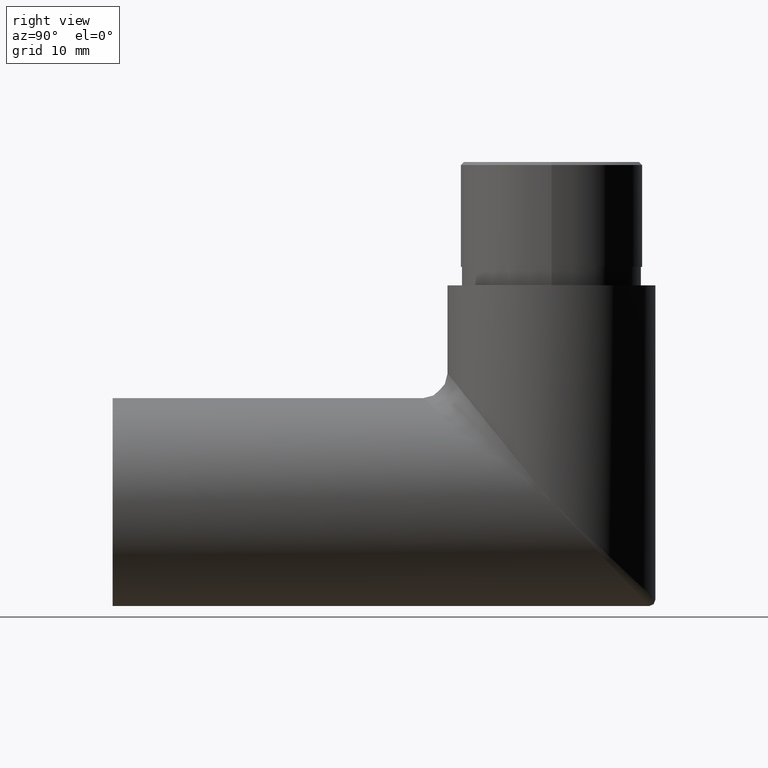
[diagram: clean part render]
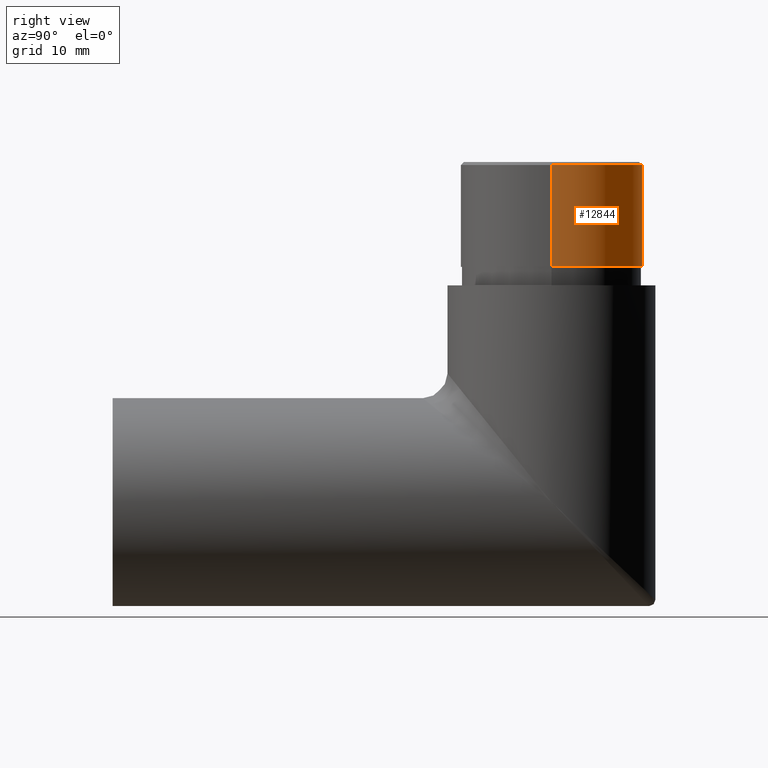
[diagram: same view with one face highlighted and labeled with its STEP entity id]
A machine part, right view. The second image highlights one B-rep face of the part: STEP entity #12844.
In plain terms, the highlighted cylindrical surface (partial cylindrical patch) has radius 14.8 mm, axis along (-0, -0, -1).
Its self-contained STEP definition (entity closure, byte-faithful):
#258 = CARTESIAN_POINT ( 'NONE',  ( 0.000000000000000000, 71.15000000000000568, 54.65000000000004832 ) ) ;
#588 = VECTOR ( 'NONE', #11415, 1000.000000000000000 ) ;
#672 = DIRECTION ( 'NONE',  ( -0.000000000000000000, -0.000000000000000000, -1.000000000000000000 ) ) ;
#682 = DIRECTION ( 'NONE',  ( -0.000000000000000000, -0.000000000000000000, -1.000000000000000000 ) ) ;
#1250 = EDGE_CURVE ( 'NONE', #7495, #7671, #8424, .T. ) ;
#1756 = CARTESIAN_POINT ( 'NONE',  ( -14.80000000000000071, 71.15000000000000568, 55.15000000000002700 ) ) ;
#1870 = CARTESIAN_POINT ( 'NONE',  ( -14.80000000000000071, 71.15000000000000568, 54.65000000000004832 ) ) ;
#2453 = EDGE_CURVE ( 'NONE', #7495, #14880, #13111, .T. ) ;
#2493 = CARTESIAN_POINT ( 'NONE',  ( 0.000000000000000000, 71.15000000000000568, 38.15000000000002700 ) ) ;
#2924 = FACE_OUTER_BOUND ( 'NONE', #5061, .T. ) ;
#3289 = CIRCLE ( 'NONE', #10743, 14.80000000000000071 ) ;
#3323 = ORIENTED_EDGE ( 'NONE', *, *, #2453, .T. ) ;
#3403 = DIRECTION ( 'NONE',  ( -1.000000000000000000, 0.000000000000000000, 0.000000000000000000 ) ) ;
#3674 = EDGE_CURVE ( 'NONE', #14880, #12295, #7399, .T. ) ;
#3736 = DIRECTION ( 'NONE',  ( 0.000000000000000000, 0.000000000000000000, 1.000000000000000000 ) ) ;
#4125 = CARTESIAN_POINT ( 'NONE',  ( 14.80000000000000071, 71.15000000000000568, 38.15000000000002700 ) ) ;
#4307 = ORIENTED_EDGE ( 'NONE', *, *, #3674, .T. ) ;
#5061 = EDGE_LOOP ( 'NONE', ( #3323, #4307, #9835, #10780 ) ) ;
#6004 = CARTESIAN_POINT ( 'NONE',  ( 14.80000000000000071, 71.15000000000000568, 54.65000000000004832 ) ) ;
#6130 = CARTESIAN_POINT ( 'NONE',  ( 0.000000000000000000, 71.15000000000000568, 55.15000000000002700 ) ) ;
#6850 = CARTESIAN_POINT ( 'NONE',  ( 14.80000000000000071, 71.15000000000000568, 55.15000000000002700 ) ) ;
#7294 = VECTOR ( 'NONE', #682, 1000.000000000000000 ) ;
#7399 = LINE ( 'NONE', #6850, #588 ) ;
#7413 = AXIS2_PLACEMENT_3D ( 'NONE', #258, #8599, #11105 ) ;
#7495 = VERTEX_POINT ( 'NONE', #1870 ) ;
#7671 = VERTEX_POINT ( 'NONE', #8969 ) ;
#8424 = LINE ( 'NONE', #1756, #7294 ) ;
#8599 = DIRECTION ( 'NONE',  ( 0.000000000000000000, 0.000000000000000000, -1.000000000000000000 ) ) ;
#8969 = CARTESIAN_POINT ( 'NONE',  ( -14.80000000000000071, 71.15000000000000568, 38.15000000000002700 ) ) ;
#9835 = ORIENTED_EDGE ( 'NONE', *, *, #12586, .T. ) ;
#10743 = AXIS2_PLACEMENT_3D ( 'NONE', #2493, #3736, #14627 ) ;
#10780 = ORIENTED_EDGE ( 'NONE', *, *, #1250, .F. ) ;
#11105 = DIRECTION ( 'NONE',  ( 1.000000000000000000, 0.000000000000000000, 0.000000000000000000 ) ) ;
#11415 = DIRECTION ( 'NONE',  ( -0.000000000000000000, -0.000000000000000000, -1.000000000000000000 ) ) ;
#12295 = VERTEX_POINT ( 'NONE', #4125 ) ;
#12586 = EDGE_CURVE ( 'NONE', #12295, #7671, #3289, .T. ) ;
#12844 = ADVANCED_FACE ( 'NONE', ( #2924 ), #14467, .T. ) ;
#13111 = CIRCLE ( 'NONE', #7413, 14.80000000000000071 ) ;
#13975 = AXIS2_PLACEMENT_3D ( 'NONE', #6130, #672, #3403 ) ;
#14467 = CYLINDRICAL_SURFACE ( 'NONE', #13975, 14.80000000000000071 ) ;
#14627 = DIRECTION ( 'NONE',  ( 1.000000000000000000, 0.000000000000000000, 0.000000000000000000 ) ) ;
#14880 = VERTEX_POINT ( 'NONE', #6004 ) ;